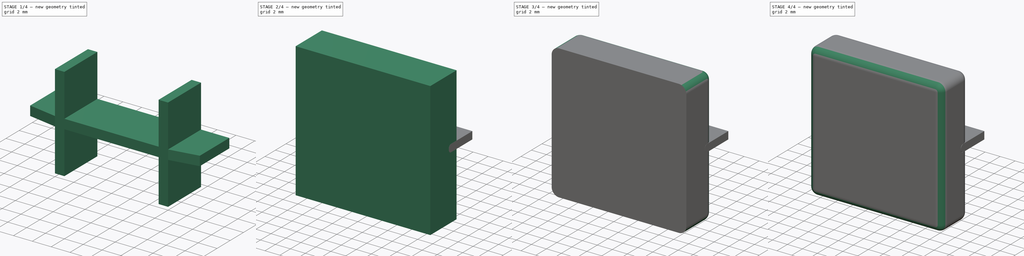
[diagram: build sequence overview — one tinted view per stage of 4, left to right]
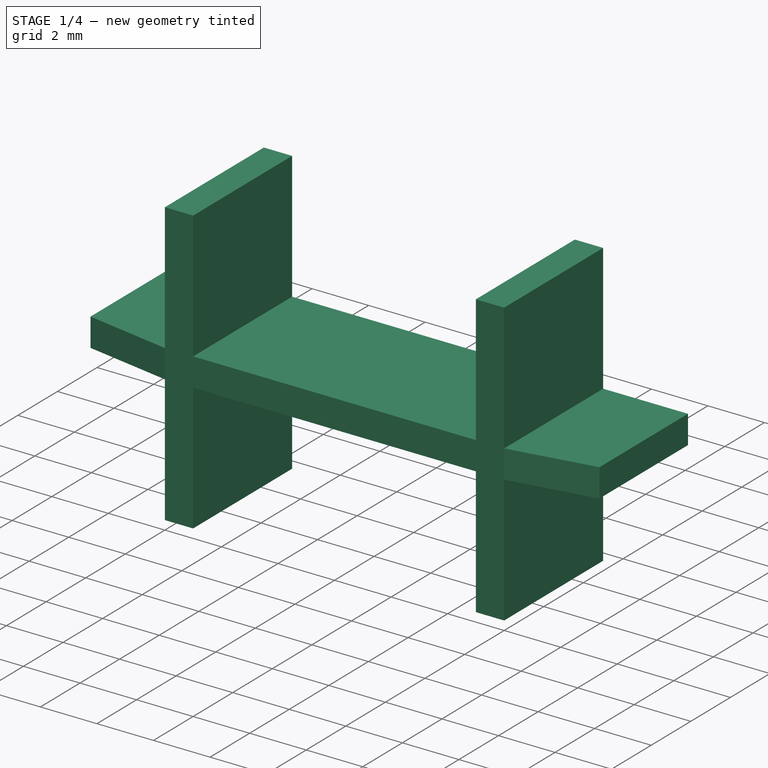
[diagram: stage 1 of 4 — iso view after this stage's code; geometry added in this stage tinted green]
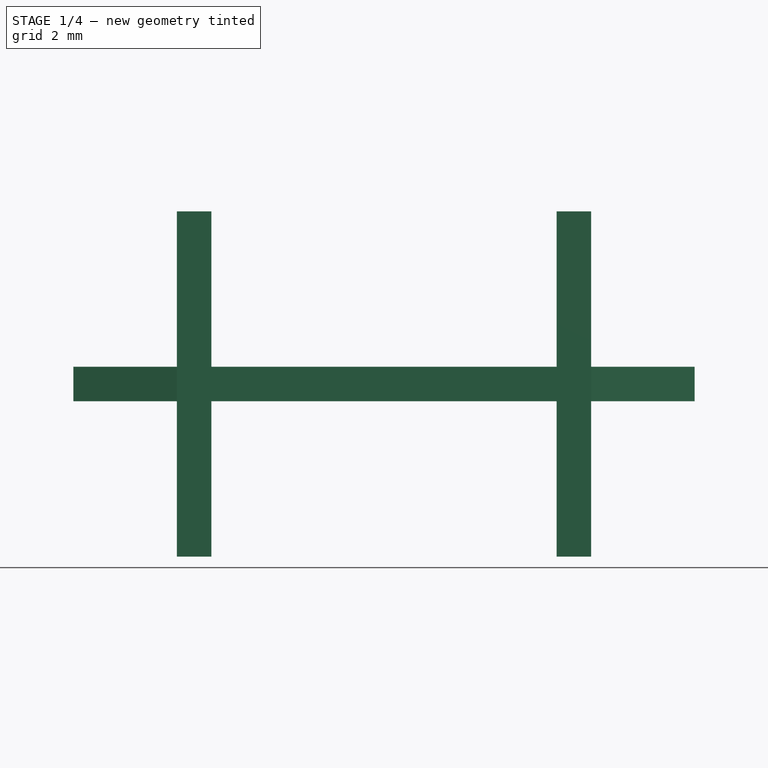
[diagram: stage 1 of 4 — front view after this stage's code; geometry added in this stage tinted green]
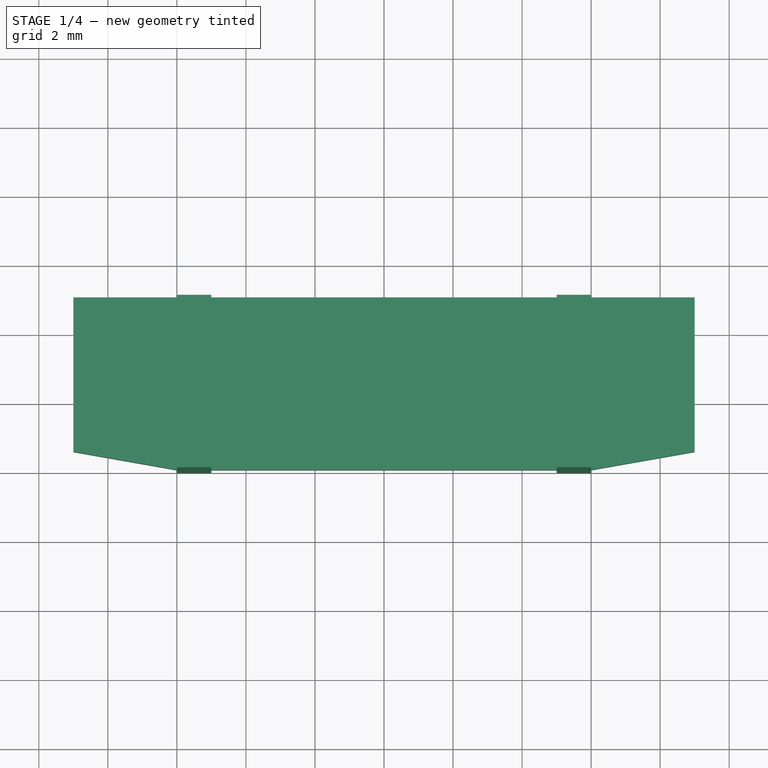
[diagram: stage 1 of 4 — top view after this stage's code; geometry added in this stage tinted green]
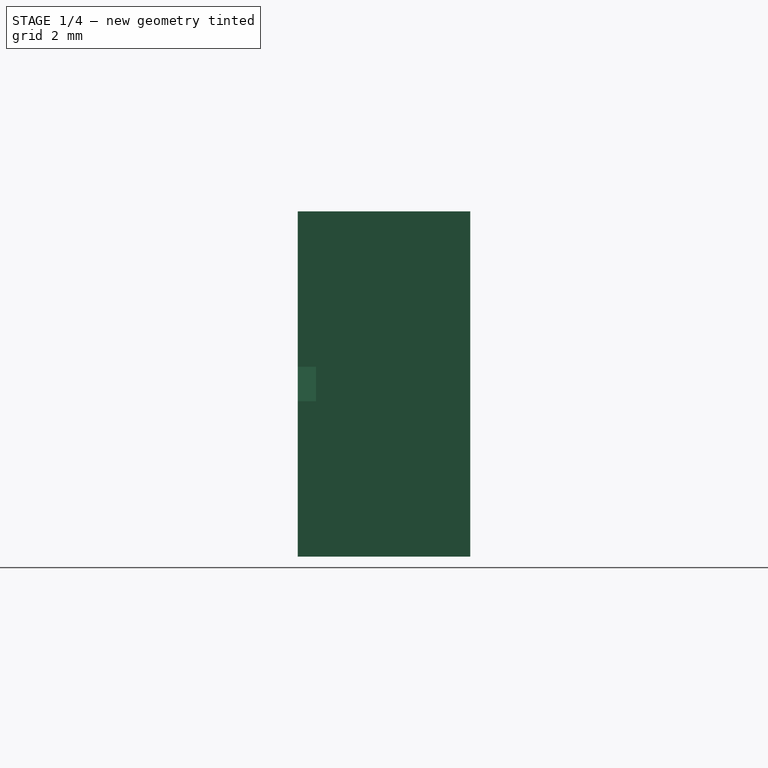
[diagram: stage 1 of 4 — right view after this stage's code; geometry added in this stage tinted green]
FCSTD DOCUMENT  (FreeCAD 0.16R6706 (Git))
Label: Bender3
License: All rights reserved
LicenseURL: http://en.wikipedia.org/wiki/All_rights_reserved
objects: PartDesign::Fillet×6, Spreadsheet::Sheet×3, Part::Box×3, Sketcher::SketchObject×2, PartDesign::Pad×1, Part::MultiFuse×1, Part::Cut×1
note: 15 computed .brp shape members not serialized (recipe doc carries the construction recipe); baked Part::Feature solids carry a one-line shape summary decoded from their .brp

FEATURE [Spreadsheet::Sheet] Spreadsheet  label="data"
  cells = A1=angle1; B1(angle1)=5; A2=angle2; B2(angle2)=10; A3=width; B3(width)==18mm; A4=height; B4(height)==5mm; A5=slot; B5(slot)==1mm; A6=flat; B6(flat)==12mm
FEATURE [Spreadsheet::Sheet] Spreadsheet001
FEATURE [Spreadsheet::Sheet] Spreadsheet002
FEATURE [Sketcher::SketchObject] Sketch
  expr: Constraints[15] = data.height
  expr: Constraints[8] = data.flat
  expr: Constraints[1] = data.width
  expr: Constraints[16] = data.height
  expr: Constraints[10] = data.angle2 + 90
  expr: Constraints[12] = data.angle2 + 90
  sketch-geometry (6):
    g0: LineSegment StartX=9 StartY=0.528981 StartZ=0 EndX=9 EndY=5 EndZ=0
    g1: LineSegment StartX=9 StartY=5 StartZ=0 EndX=-9 EndY=5 EndZ=0
    g2: LineSegment StartX=-9 StartY=5 StartZ=0 EndX=-9 EndY=0.528981 EndZ=0
    g3: LineSegment StartX=-6 StartY=0 StartZ=0 EndX=6 EndY=0 EndZ=0
    g4: LineSegment StartX=-9 StartY=0.528981 StartZ=0 EndX=-6 EndY=0 EndZ=0
    g5: LineSegment StartX=6 StartY=-1e-12 StartZ=0 EndX=9 EndY=0.528981 EndZ=0
  constraints (17):
    c: Symmetric(g0,g2,g-2)
    c: DistanceX(g1,g0) = 18
    c: Parallel(g1,g-1)
    c: Parallel(g2,g0)
    c: Coincident(g1,g0)
    c: Coincident(g2,g1)
    c: Parallel(g-2,g0)
    c: Symmetric(g3,g3,g-2)
    c: DistanceX(g3,g3) = 12
    c: Coincident(g2,g4)
    c: Angle(g4,g2) = 1.74533
    c: Coincident(g0,g5)
    c: Angle(g0,g5) = 1.74533
    c: Coincident(g3,g4)
    c: Coincident(g3,g5)
    c: DistanceY(g-1,g0) = 5
    c: DistanceY(g3,g0) = 5
FEATURE [PartDesign::Pad] Pad
  Length = 1
  Length2 = 100
  Midplane = true
  Sketch = -> Sketch
  Type = 0
  expr: Length = data.slot
FEATURE [Part::Box] Box001  label="Cube001"
  Height = 10
  Length = 1
  Placement = pos=(-6,0,-5) rot=(0,0,1;0rad)
  Width = 5
FEATURE [Part::Box] Box002  label="Cube002"
  Height = 10
  Length = 1
  Placement = pos=(5,0,-5) rot=(0,0,1;0rad)
  Width = 5
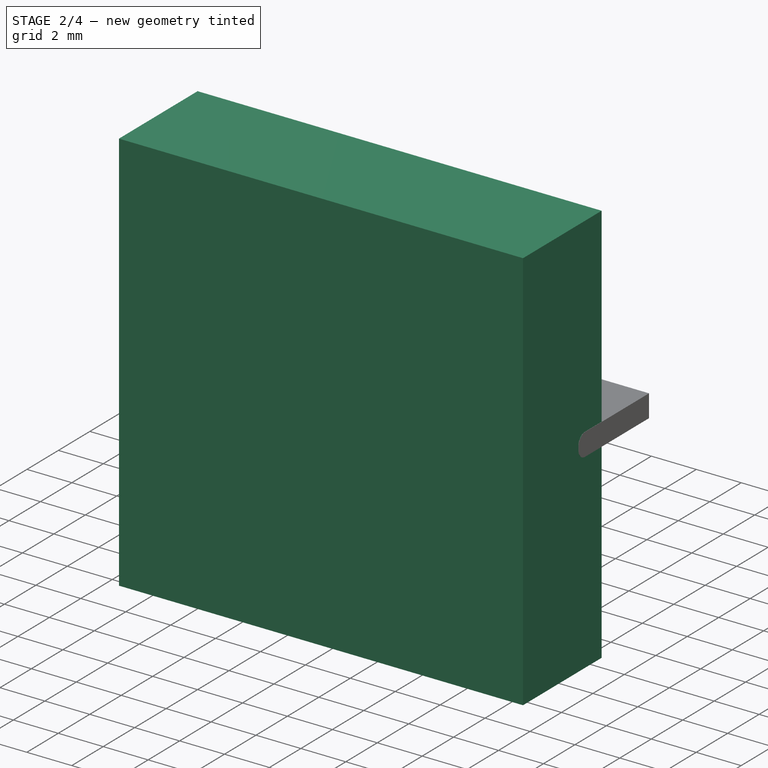
[diagram: stage 2 of 4 — iso view after this stage's code; geometry added in this stage tinted green]
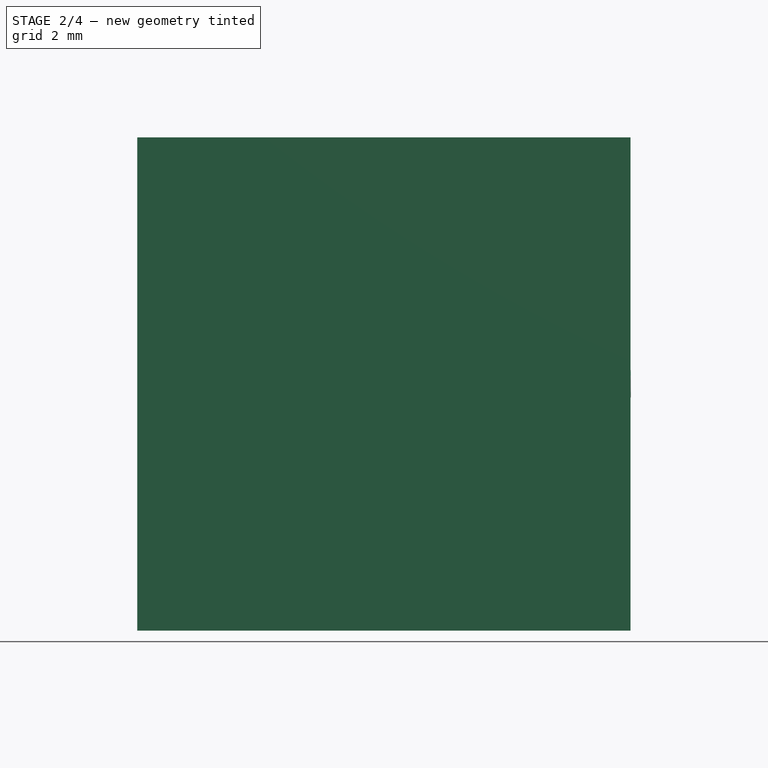
[diagram: stage 2 of 4 — front view after this stage's code; geometry added in this stage tinted green]
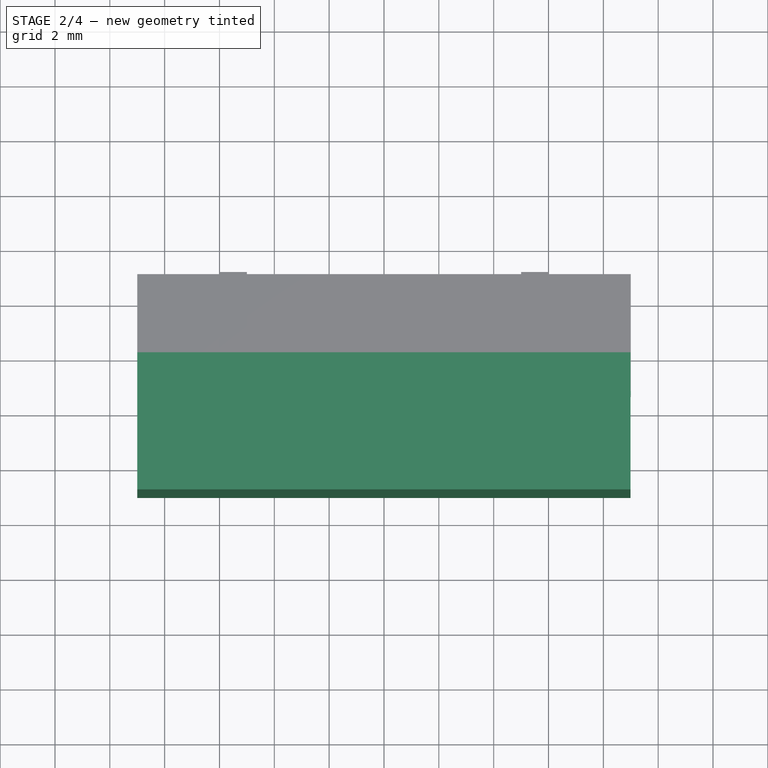
[diagram: stage 2 of 4 — top view after this stage's code; geometry added in this stage tinted green]
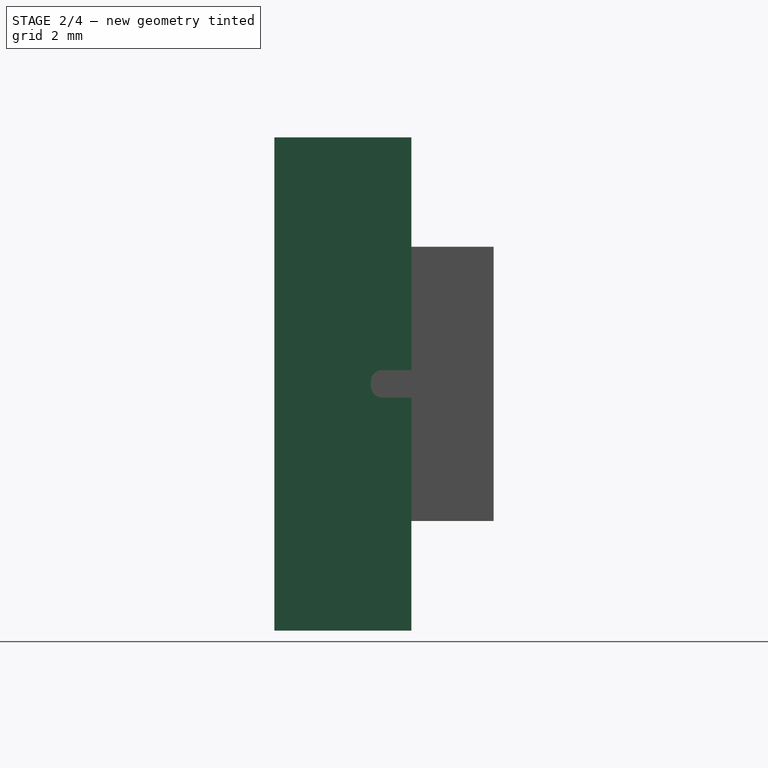
[diagram: stage 2 of 4 — right view after this stage's code; geometry added in this stage tinted green]
FEATURE [Sketcher::SketchObject] Sketch001
  Placement = pos=(0,0,0) rot=(0.57735,0.57735,0.57735;2.0944rad)
  expr: Constraints[10] = data.height
  expr: Constraints[7] = data.width
  expr: Constraints[9] = data.angle2 + 90
  sketch-geometry (6):
    g0: LineSegment StartX=0 StartY=0 StartZ=0 EndX=1.58694 EndY=-9 EndZ=0
    g1: LineSegment StartX=1.58694 StartY=-9 StartZ=0 EndX=5 EndY=-9 EndZ=0
    g2: LineSegment StartX=5 StartY=-9 StartZ=0 EndX=5 EndY=9 EndZ=0
    g3: LineSegment StartX=5 StartY=9 StartZ=0 EndX=1.58694 EndY=9 EndZ=0
    g4: LineSegment StartX=1.58694 StartY=9 StartZ=0 EndX=0 EndY=0 EndZ=0
    g5: GeomPoint [constr] X=0 Y=0 Z=0
  constraints (14):
    c: Coincident(g0,g1)
    c: Coincident(g1,g2)
    c: Coincident(g2,g3)
    c: Coincident(g3,g4)
    c: Symmetric(g1,g2,g-1)
    c: Parallel(g3,g1)
    c: Symmetric(g3,g0,g-1)
    c: DistanceY(g1,g2) = 18
    c: Angle(g1,g0) = 1.74533
    c: Angle(g4,g3) = 1.74533
    c: DistanceX(g-1,g1) = 5
    c: Coincident(g0,g4)
    c: Coincident(g0,g5)
    c: Coincident(g0,g-1)
FEATURE [Part::Box] Box  label="Cube"
  Height = 17.99
  Length = 17.99
  Placement = pos=(-9,-3,-9) rot=(0,0,1;0rad)
  Width = 5
  expr: Placement.Base.z = -data.width / 2
  expr: Placement.Base.x = -data.width / 2
  expr: Height = data.width - 0.01mm
  expr: Width = data.height
  expr: Length = data.width - 0.01mm
FEATURE [PartDesign::Fillet] Fillet
  Base = -> Pad [Edge13,Edge12,Edge16,Edge15,Edge18,Edge17]
  Radius = 0.4
  expr: Radius = data.slot / 2 - 0.1mm
FEATURE [Part::MultiFuse] Fusion
  Shapes = -> [Box002,Box001,Fillet]
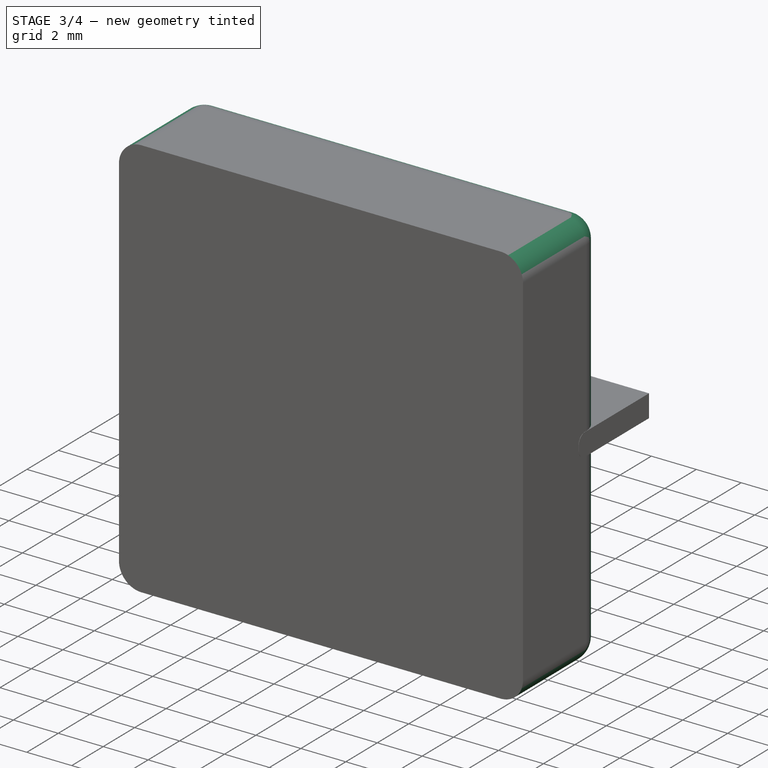
[diagram: stage 3 of 4 — iso view after this stage's code; geometry added in this stage tinted green]
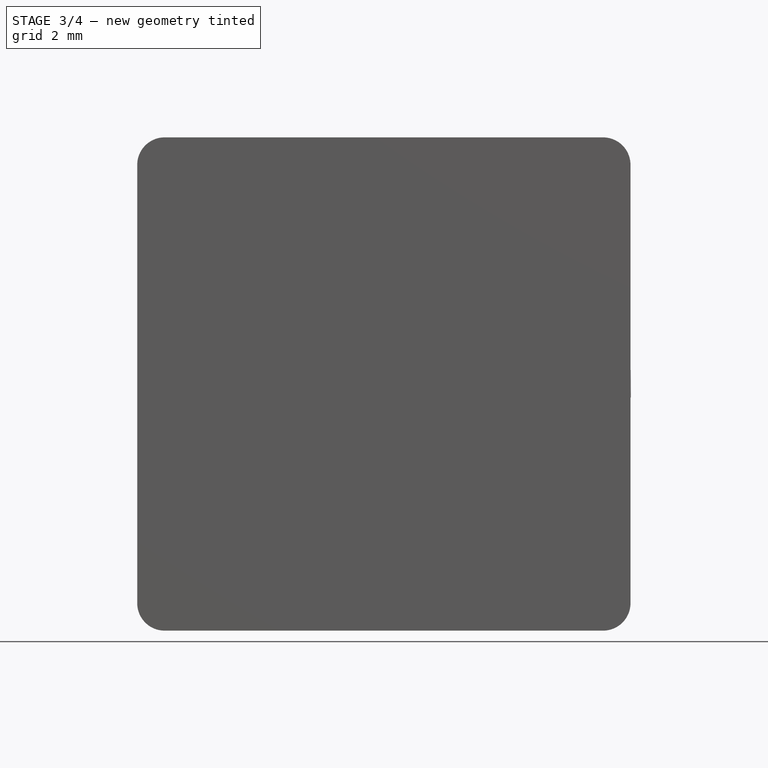
[diagram: stage 3 of 4 — front view after this stage's code; geometry added in this stage tinted green]
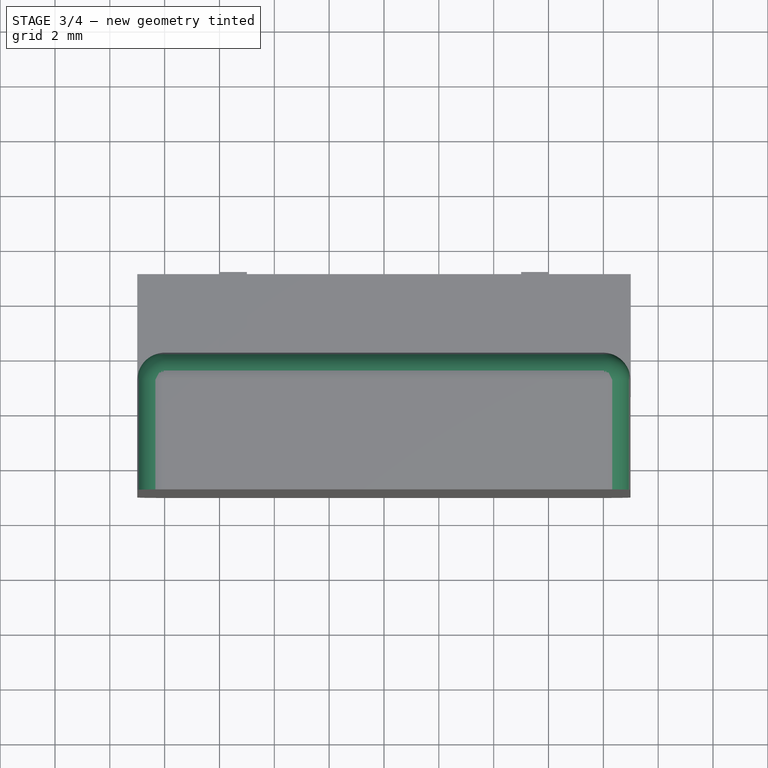
[diagram: stage 3 of 4 — top view after this stage's code; geometry added in this stage tinted green]
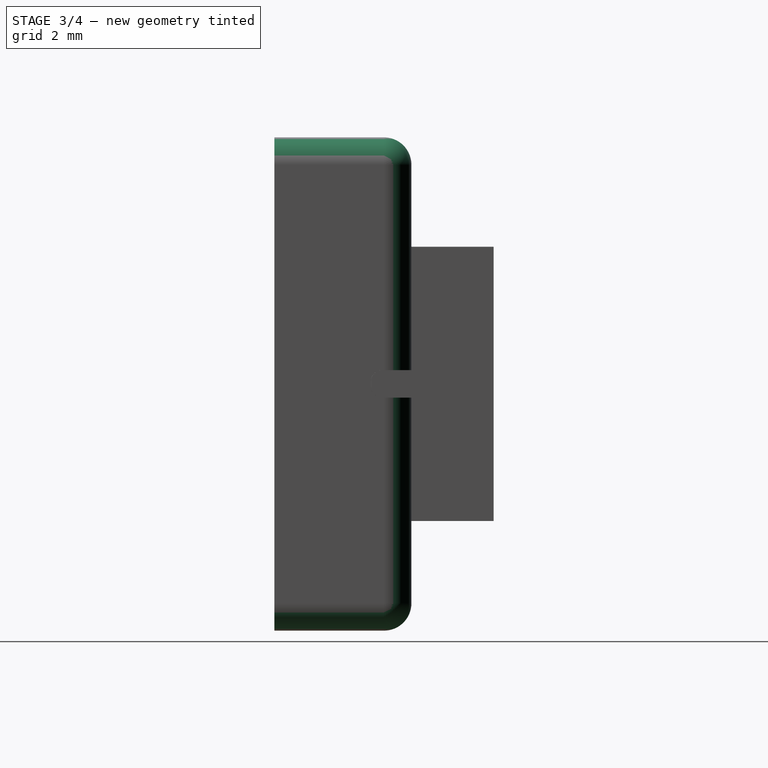
[diagram: stage 3 of 4 — right view after this stage's code; geometry added in this stage tinted green]
FEATURE [PartDesign::Fillet] Fillet002
  Base = -> Box [Edge4,Edge2,Edge6]
  Placement = pos=(-9,-3,-9) rot=(0,0,1;0rad)
  Radius = 1
FEATURE [PartDesign::Fillet] Fillet003
  Base = -> Fillet002 [Edge19]
  Placement = pos=(-9,-3,-9) rot=(0,0,1;0rad)
  Radius = 1
FEATURE [PartDesign::Fillet] Fillet004
  Base = -> Fillet003 [Edge9,Edge13,Edge15,Edge17,Edge19,Edge21,Edge23,Edge24]
  Placement = pos=(-9,-3,-9) rot=(0,0,1;0rad)
  Radius = 1
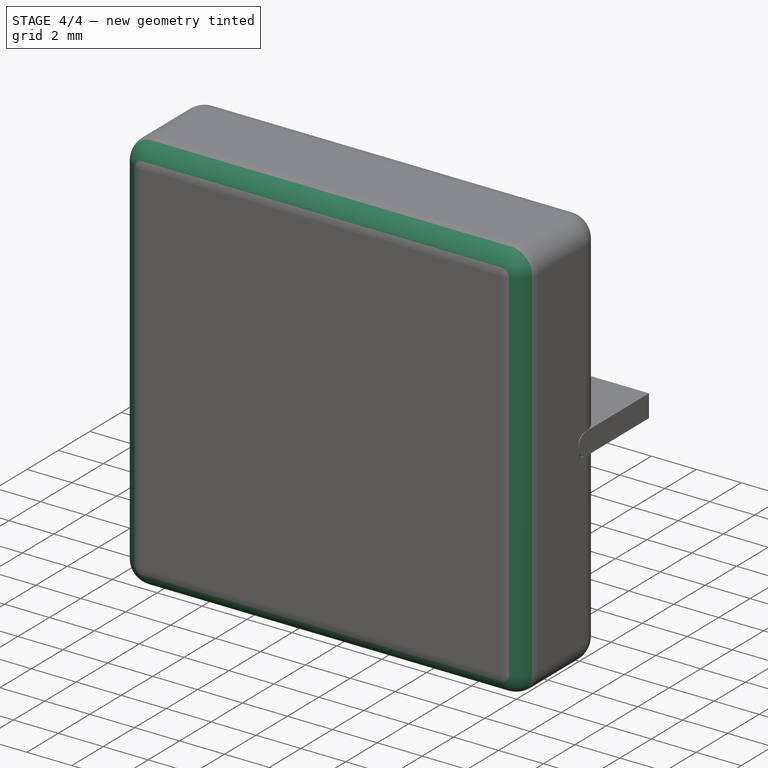
[diagram: stage 4 of 4 — iso view after this stage's code; geometry added in this stage tinted green]
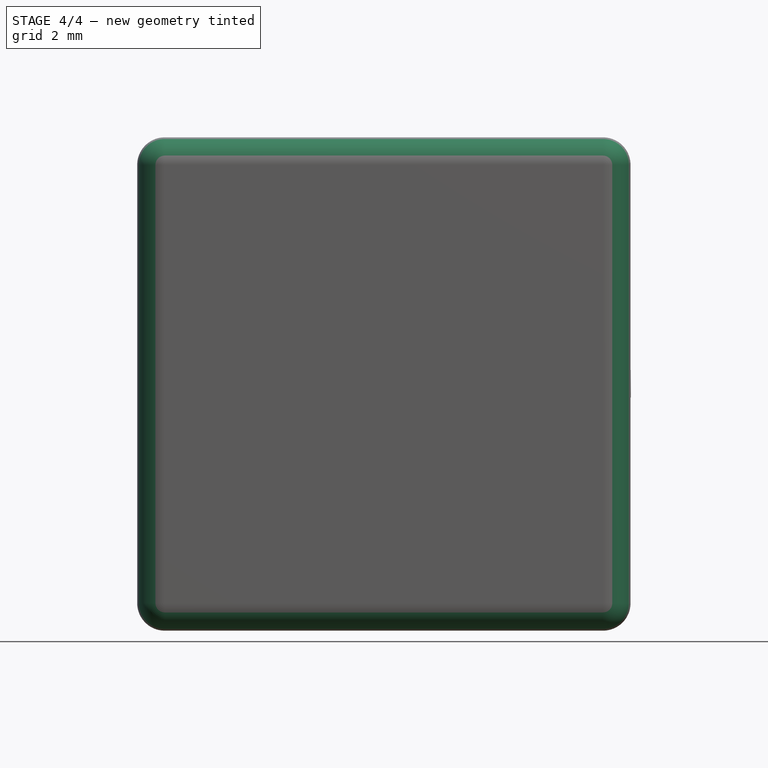
[diagram: stage 4 of 4 — front view after this stage's code; geometry added in this stage tinted green]
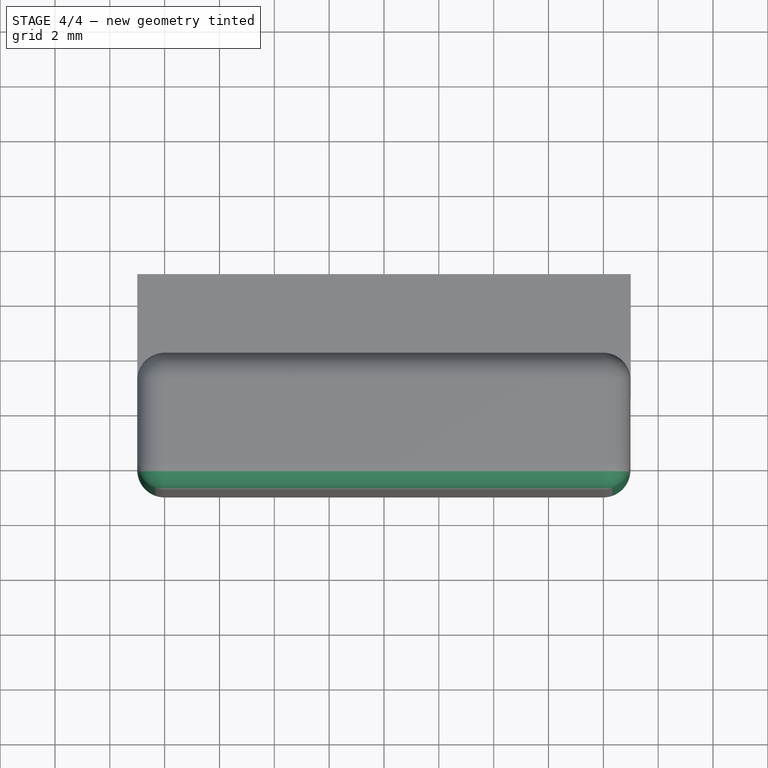
[diagram: stage 4 of 4 — top view after this stage's code; geometry added in this stage tinted green]
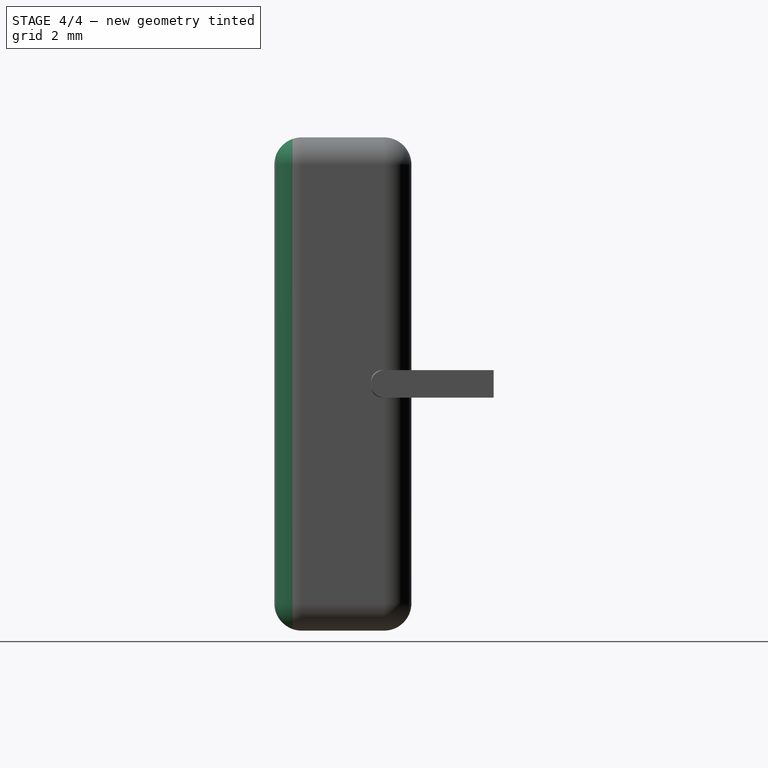
[diagram: stage 4 of 4 — right view after this stage's code; geometry added in this stage tinted green]
FEATURE [PartDesign::Fillet] Fillet005
  Base = -> Fillet004 [Edge3,Edge6,Edge11,Edge12,Edge13,Edge14,Edge15,Edge16]
  Placement = pos=(-9,-3,-9) rot=(0,0,1;0rad)
  Radius = 1
FEATURE [PartDesign::Fillet] Fillet006
  Base = -> Pad [Edge12,Edge13,Edge16,Edge15,Edge18,Edge17]
  Radius = 0.49
  expr: Radius = data.slot / 2 - 0.01mm
FEATURE [Part::Cut] Cut
  Base = -> Fillet005
  Tool = -> Fusion
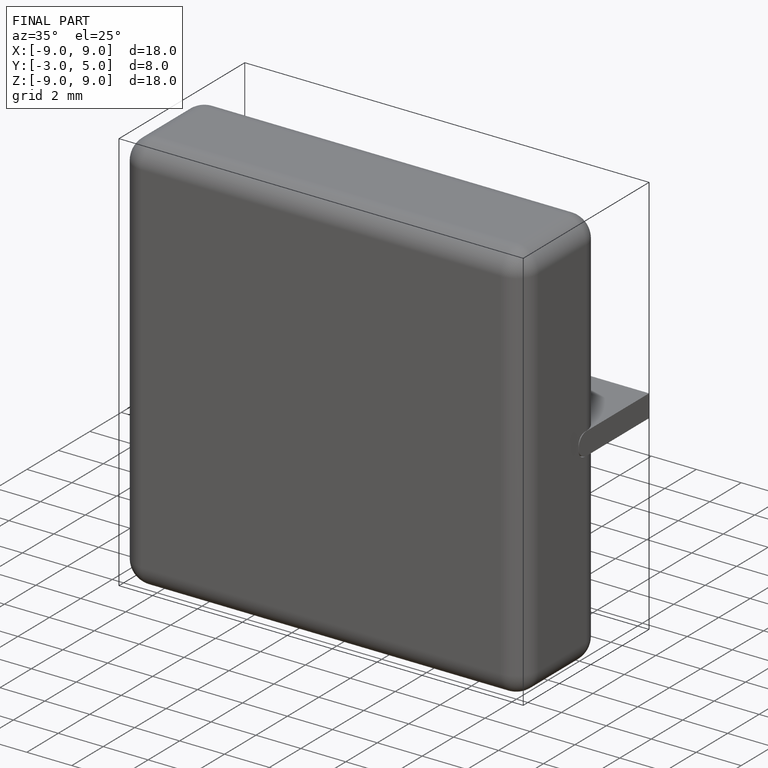
[diagram: finished part — iso view with bounding-box wireframe]
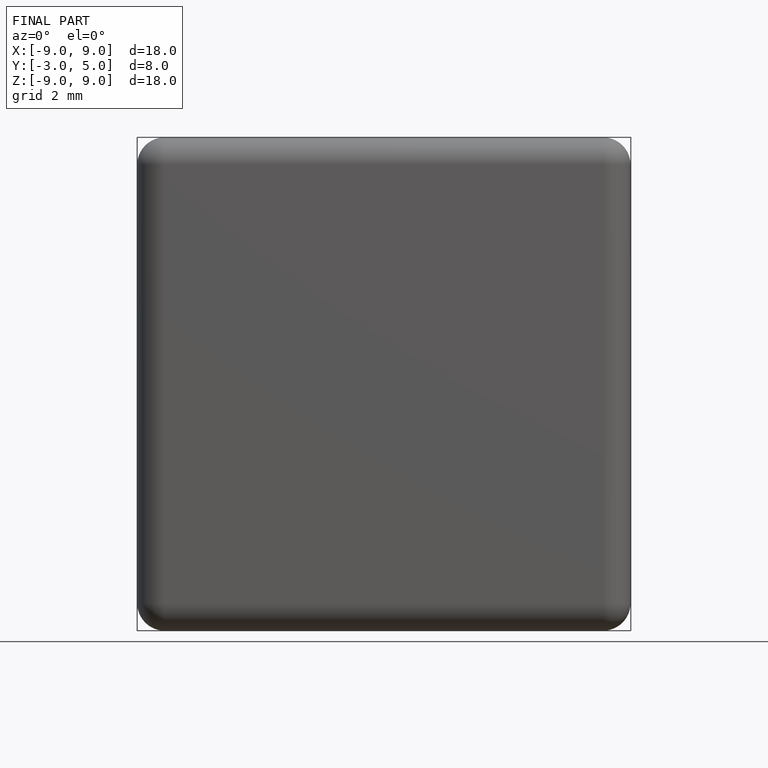
[diagram: finished part — front view with bounding-box wireframe]
